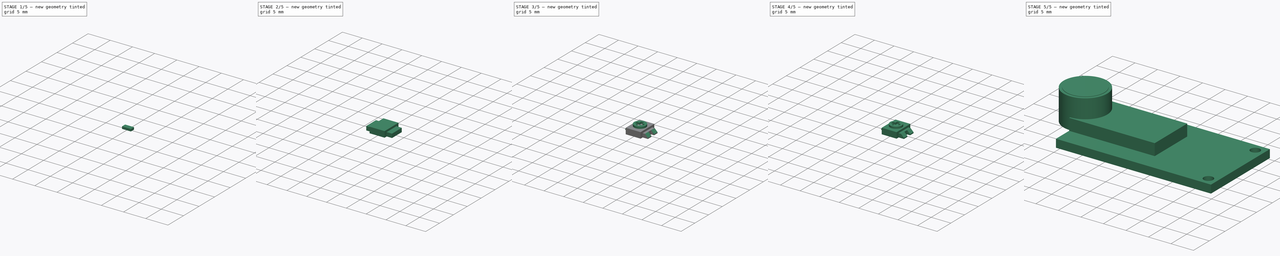
[diagram: build sequence overview — one tinted view per stage of 5, left to right]
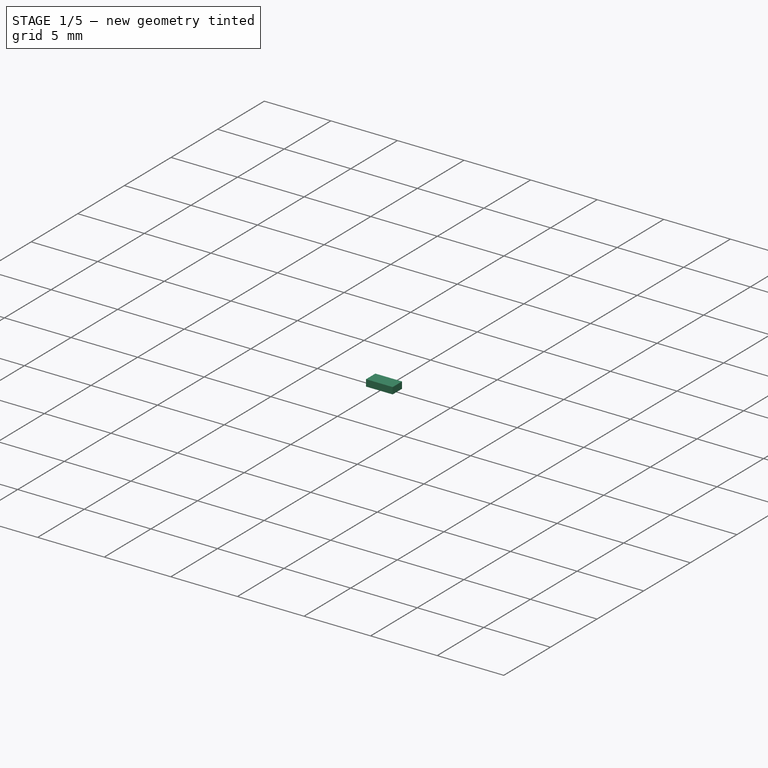
[diagram: stage 1 of 5 — iso view after this stage's code; geometry added in this stage tinted green]
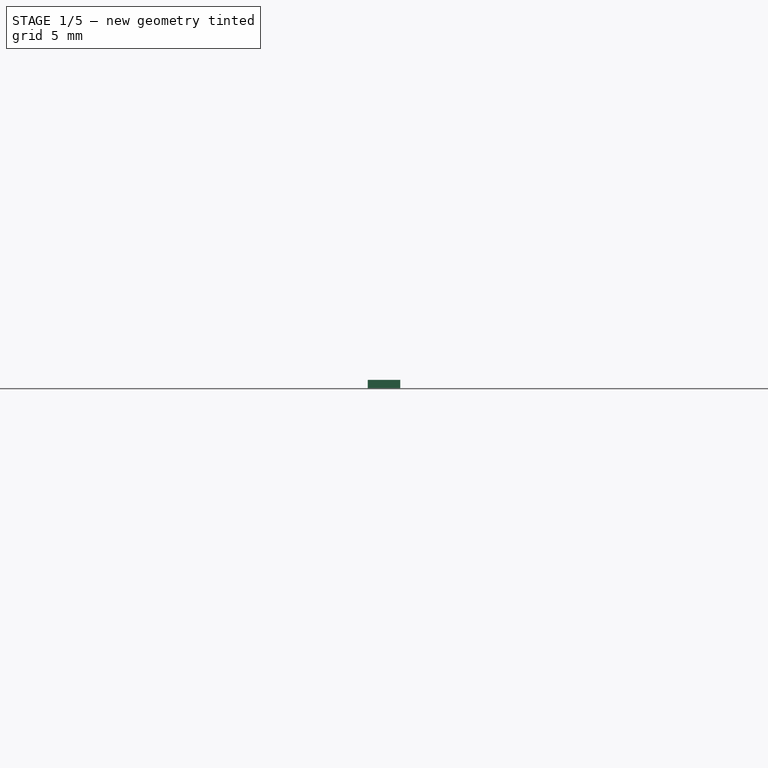
[diagram: stage 1 of 5 — front view after this stage's code; geometry added in this stage tinted green]
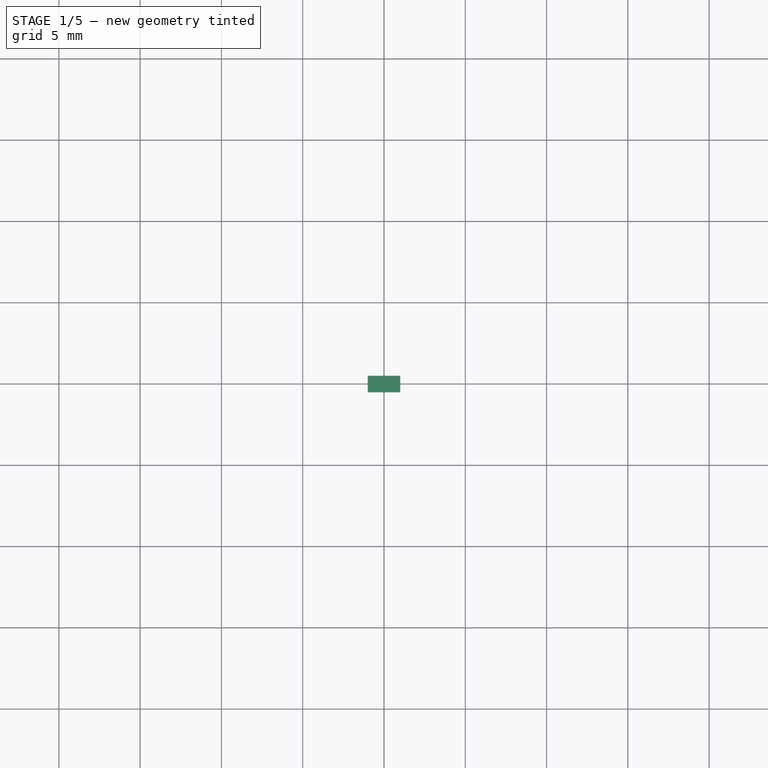
[diagram: stage 1 of 5 — top view after this stage's code; geometry added in this stage tinted green]
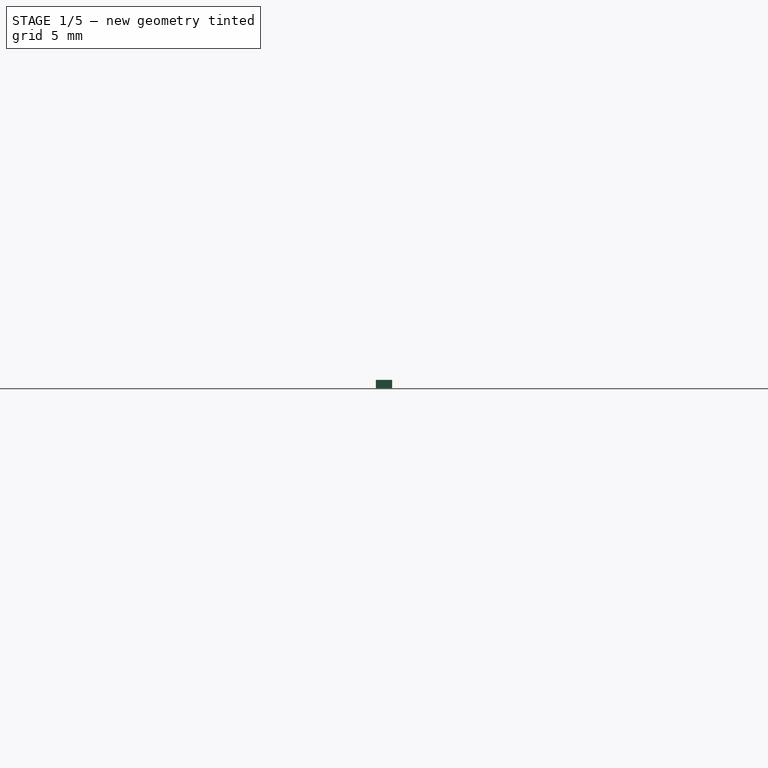
[diagram: stage 1 of 5 — right view after this stage's code; geometry added in this stage tinted green]
FCSTD DOCUMENT  (FreeCAD 0.19R24276 (Git))
Label: WaveS_SoundSensor
License: All rights reserved
LicenseURL: http://en.wikipedia.org/wiki/All_rights_reserved
objects: Sketcher::SketchObject×32, PartDesign::Pad×22, PartDesign::Body×20, PartDesign::Pocket×10, PartDesign::Chamfer×2, App::Part×1
note: 120 computed .brp shape members not serialized (recipe doc carries the construction recipe); baked Part::Feature solids carry a one-line shape summary decoded from their .brp

FEATURE [PartDesign::Body] Body012  label="SmallEComp003"
  Group = -> [Sketch024,Pad014]
  Origin = -> Origin013
  Placement = pos=(14,4,0) rot=(0,0,1;0rad)
  Tip = -> Pad014
FEATURE [Sketcher::SketchObject] Sketch025
  FullyConstrained = true
  MapMode = 5
  Support = -> [XY_Plane014]
  sketch-geometry (4):
    g0: LineSegment StartX=-1 StartY=0.5 StartZ=0 EndX=1 EndY=0.5 EndZ=0
    g1: LineSegment StartX=1 StartY=0.5 StartZ=0 EndX=1 EndY=-0.5 EndZ=0
    g2: LineSegment StartX=1 StartY=-0.5 StartZ=0 EndX=-1 EndY=-0.5 EndZ=0
    g3: LineSegment StartX=-1 StartY=-0.5 StartZ=0 EndX=-1 EndY=0.5 EndZ=0
  constraints (11):
    c: Coincident(g0,g1)
    c: Coincident(g1,g2)
    c: Coincident(g2,g3)
    c: Coincident(g3,g0)
    c: Horizontal(g0)
    c: Horizontal(g2)
    c: Vertical(g1)
    c: Vertical(g3)
    c: Symmetric(g0,g1,g-1)
    c: Distance(g0) = 2
    c: Distance(g1) = 1
FEATURE [PartDesign::Pad] Pad015
  Direction = (1,1,1)
  Length = 0.5
  Length2 = 100
  Profile = -> Sketch025
  Type = 0
FEATURE [PartDesign::Body] Body013  label="SmallEComp004"
  Group = -> [Sketch025,Pad015]
  Origin = -> Origin014
  Placement = pos=(21,1.5,0) rot=(0,0,1;0rad)
  Tip = -> Pad015
FEATURE [Sketcher::SketchObject] Sketch026
  FullyConstrained = true
  MapMode = 5
  Support = -> [XY_Plane015]
  sketch-geometry (4):
    g0: LineSegment StartX=-1 StartY=0.5 StartZ=0 EndX=1 EndY=0.5 EndZ=0
    g1: LineSegment StartX=1 StartY=0.5 StartZ=0 EndX=1 EndY=-0.5 EndZ=0
    g2: LineSegment StartX=1 StartY=-0.5 StartZ=0 EndX=-1 EndY=-0.5 EndZ=0
    g3: LineSegment StartX=-1 StartY=-0.5 StartZ=0 EndX=-1 EndY=0.5 EndZ=0
  constraints (11):
    c: Coincident(g0,g1)
    c: Coincident(g1,g2)
    c: Coincident(g2,g3)
    c: Coincident(g3,g0)
    c: Horizontal(g0)
    c: Horizontal(g2)
    c: Vertical(g1)
    c: Vertical(g3)
    c: Symmetric(g0,g1,g-1)
    c: Distance(g0) = 2
    c: Distance(g1) = 1
FEATURE [PartDesign::Pad] Pad016
  Direction = (1,1,1)
  Length = 0.5
  Length2 = 100
  Profile = -> Sketch026
  Type = 0
FEATURE [PartDesign::Body] Body014  label="SmallEComp005"
  Group = -> [Sketch026,Pad016]
  Origin = -> Origin015
  Placement = pos=(21,4,0) rot=(0,0,1;0rad)
  Tip = -> Pad016
FEATURE [Sketcher::SketchObject] Sketch027
  FullyConstrained = true
  MapMode = 5
  Support = -> [XY_Plane016]
  sketch-geometry (4):
    g0: LineSegment StartX=-1 StartY=0.5 StartZ=0 EndX=1 EndY=0.5 EndZ=0
    g1: LineSegment StartX=1 StartY=0.5 StartZ=0 EndX=1 EndY=-0.5 EndZ=0
    g2: LineSegment StartX=1 StartY=-0.5 StartZ=0 EndX=-1 EndY=-0.5 EndZ=0
    g3: LineSegment StartX=-1 StartY=-0.5 StartZ=0 EndX=-1 EndY=0.5 EndZ=0
  constraints (11):
    c: Coincident(g0,g1)
    c: Coincident(g1,g2)
    c: Coincident(g2,g3)
    c: Coincident(g3,g0)
    c: Horizontal(g0)
    c: Horizontal(g2)
    c: Vertical(g1)
    c: Vertical(g3)
    c: Symmetric(g0,g1,g-1)
    c: Distance(g0) = 2
    c: Distance(g1) = 1
FEATURE [PartDesign::Pad] Pad017
  Direction = (1,1,1)
  Length = 0.5
  Length2 = 100
  Profile = -> Sketch027
  Type = 0
FEATURE [PartDesign::Body] Body015  label="SmallEComp006"
  Group = -> [Sketch027,Pad017]
  Origin = -> Origin016
  Placement = pos=(21,-1.5,0) rot=(0,0,1;0rad)
  Tip = -> Pad017
FEATURE [Sketcher::SketchObject] Sketch028
  FullyConstrained = true
  MapMode = 5
  Support = -> [XY_Plane017]
  sketch-geometry (4):
    g0: LineSegment StartX=-1 StartY=0.5 StartZ=0 EndX=1 EndY=0.5 EndZ=0
    g1: LineSegment StartX=1 StartY=0.5 StartZ=0 EndX=1 EndY=-0.5 EndZ=0
    g2: LineSegment StartX=1 StartY=-0.5 StartZ=0 EndX=-1 EndY=-0.5 EndZ=0
    g3: LineSegment StartX=-1 StartY=-0.5 StartZ=0 EndX=-1 EndY=0.5 EndZ=0
  constraints (11):
    c: Coincident(g0,g1)
    c: Coincident(g1,g2)
    c: Coincident(g2,g3)
    c: Coincident(g3,g0)
    c: Horizontal(g0)
    c: Horizontal(g2)
    c: Vertical(g1)
    c: Vertical(g3)
    c: Symmetric(g0,g1,g-1)
    c: Distance(g0) = 2
    c: Distance(g1) = 1
FEATURE [PartDesign::Pad] Pad018
  Direction = (1,1,1)
  Length = 0.5
  Length2 = 100
  Profile = -> Sketch028
  Type = 0
FEATURE [PartDesign::Body] Body016  label="SmallEComp007"
  Group = -> [Sketch028,Pad018]
  Origin = -> Origin017
  Placement = pos=(21,-4,0) rot=(0,0,1;0rad)
  Tip = -> Pad018
FEATURE [Sketcher::SketchObject] Sketch029
  FullyConstrained = true
  MapMode = 5
  Support = -> [XY_Plane018]
  sketch-geometry (4):
    g0: LineSegment StartX=-1 StartY=0.5 StartZ=0 EndX=1 EndY=0.5 EndZ=0
    g1: LineSegment StartX=1 StartY=0.5 StartZ=0 EndX=1 EndY=-0.5 EndZ=0
    g2: LineSegment StartX=1 StartY=-0.5 StartZ=0 EndX=-1 EndY=-0.5 EndZ=0
    g3: LineSegment StartX=-1 StartY=-0.5 StartZ=0 EndX=-1 EndY=0.5 EndZ=0
  constraints (11):
    c: Coincident(g0,g1)
    c: Coincident(g1,g2)
    c: Coincident(g2,g3)
    c: Coincident(g3,g0)
    c: Horizontal(g0)
    c: Horizontal(g2)
    c: Vertical(g1)
    c: Vertical(g3)
    c: Symmetric(g0,g1,g-1)
    c: Distance(g0) = 2
    c: Distance(g1) = 1
FEATURE [PartDesign::Pad] Pad019
  Direction = (1,1,1)
  Length = 0.5
  Length2 = 100
  Profile = -> Sketch029
  Type = 0
FEATURE [PartDesign::Body] Body017  label="SmallEComp008"
  Group = -> [Sketch029,Pad019]
  Origin = -> Origin018
  Placement = pos=(25,2.5,0) rot=(0,0,1;0rad)
  Tip = -> Pad019
FEATURE [Sketcher::SketchObject] Sketch030
  FullyConstrained = true
  MapMode = 5
  Support = -> [XY_Plane019]
  sketch-geometry (4):
    g0: LineSegment StartX=-1 StartY=0.5 StartZ=0 EndX=1 EndY=0.5 EndZ=0
    g1: LineSegment StartX=1 StartY=0.5 StartZ=0 EndX=1 EndY=-0.5 EndZ=0
    g2: LineSegment StartX=1 StartY=-0.5 StartZ=0 EndX=-1 EndY=-0.5 EndZ=0
    g3: LineSegment StartX=-1 StartY=-0.5 StartZ=0 EndX=-1 EndY=0.5 EndZ=0
  constraints (11):
    c: Coincident(g0,g1)
    c: Coincident(g1,g2)
    c: Coincident(g2,g3)
    c: Coincident(g3,g0)
    c: Horizontal(g0)
    c: Horizontal(g2)
    c: Vertical(g1)
    c: Vertical(g3)
    c: Symmetric(g0,g1,g-1)
    c: Distance(g0) = 2
    c: Distance(g1) = 1
FEATURE [PartDesign::Pad] Pad020
  Direction = (1,1,1)
  Length = 0.5
  Length2 = 100
  Profile = -> Sketch030
  Type = 0
FEATURE [PartDesign::Body] Body018  label="SmallEComp009"
  Group = -> [Sketch030,Pad020]
  Origin = -> Origin019
  Placement = pos=(25,0,0) rot=(0,0,1;0rad)
  Tip = -> Pad020
FEATURE [Sketcher::SketchObject] Sketch031
  FullyConstrained = true
  MapMode = 5
  Support = -> [XY_Plane020]
  sketch-geometry (4):
    g0: LineSegment StartX=-1 StartY=0.5 StartZ=0 EndX=1 EndY=0.5 EndZ=0
    g1: LineSegment StartX=1 StartY=0.5 StartZ=0 EndX=1 EndY=-0.5 EndZ=0
    g2: LineSegment StartX=1 StartY=-0.5 StartZ=0 EndX=-1 EndY=-0.5 EndZ=0
    g3: LineSegment StartX=-1 StartY=-0.5 StartZ=0 EndX=-1 EndY=0.5 EndZ=0
  constraints (11):
    c: Coincident(g0,g1)
    c: Coincident(g1,g2)
    c: Coincident(g2,g3)
    c: Coincident(g3,g0)
    c: Horizontal(g0)
    c: Horizontal(g2)
    c: Vertical(g1)
    c: Vertical(g3)
    c: Symmetric(g0,g1,g-1)
    c: Distance(g0) = 2
    c: Distance(g1) = 1
FEATURE [PartDesign::Pad] Pad021
  Direction = (1,1,1)
  Length = 0.5
  Length2 = 100
  Profile = -> Sketch031
  Type = 0
FEATURE [PartDesign::Body] Body019  label="SmallEComp010"
  Group = -> [Sketch031,Pad021]
  Origin = -> Origin020
  Placement = pos=(25,-2.5,0) rot=(0,0,1;0rad)
  Tip = -> Pad021
FEATURE [App::Part] Part  label="WaveShare_SoundSens"
  Group = -> [Body,Body001,Body002,Body003,Body004,Body005,Body006,Body007,Body008,Body009,Body010,Body011,Body012,Body013,Body014,Body015,Body016,Body017,Body018,Body019]
  Origin = -> Origin
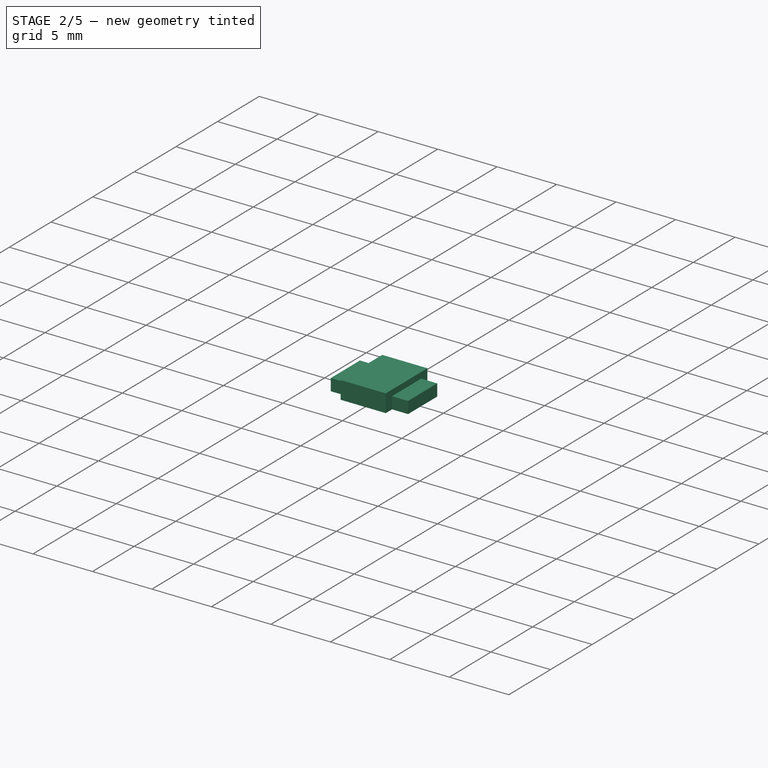
[diagram: stage 2 of 5 — iso view after this stage's code; geometry added in this stage tinted green]
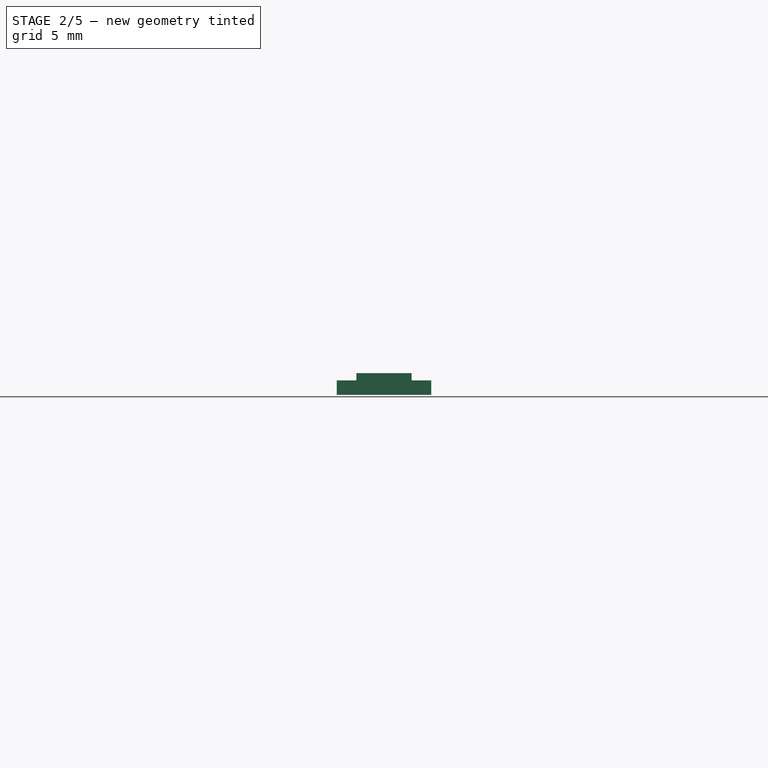
[diagram: stage 2 of 5 — front view after this stage's code; geometry added in this stage tinted green]
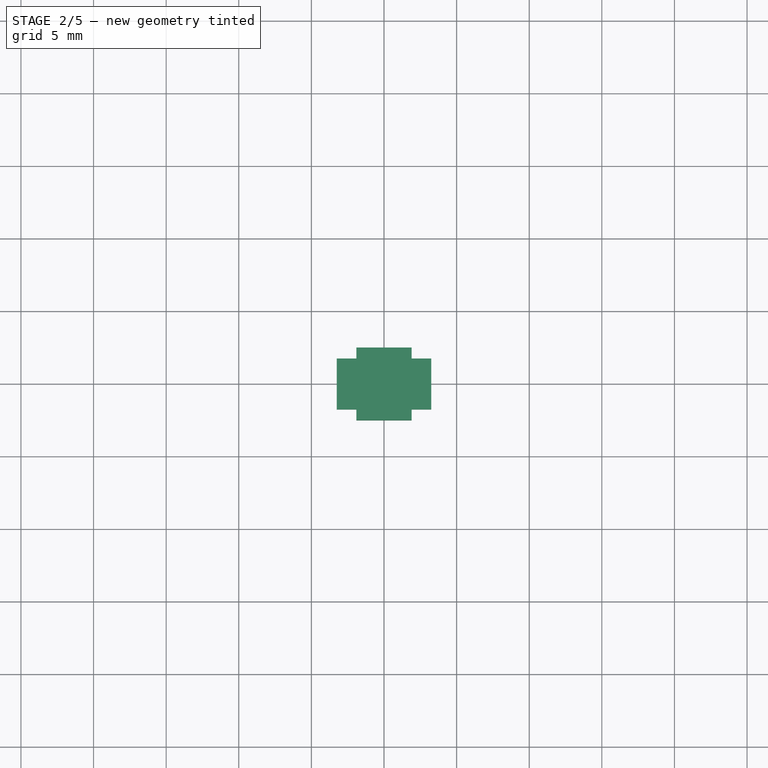
[diagram: stage 2 of 5 — top view after this stage's code; geometry added in this stage tinted green]
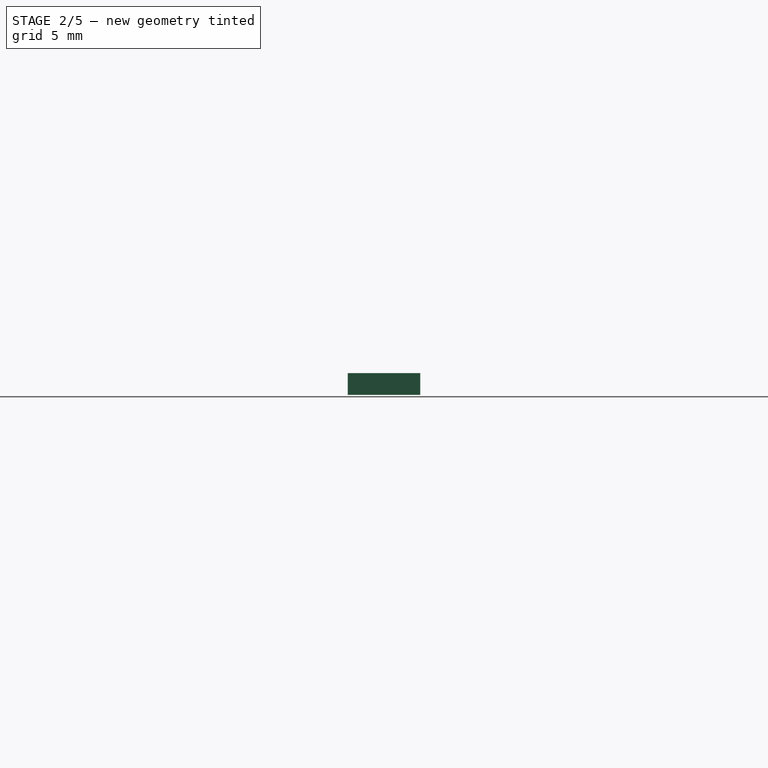
[diagram: stage 2 of 5 — right view after this stage's code; geometry added in this stage tinted green]
FEATURE [PartDesign::Body] Body005  label="TrimPot1"
  Group = -> [Sketch007,Pad005,Sketch008,Pad006,Sketch009,Pocket002,Sketch010,Pocket003,Sketch011,Pocket004,Sketch012,Pocket005,Chamfer]
  Origin = -> Origin006
  Placement = pos=(4,-7,0) rot=(0,0,1;0rad)
  Tip = -> Chamfer
FEATURE [Sketcher::SketchObject] Sketch013
  FullyConstrained = true
  MapMode = 5
  Support = -> [XY_Plane007]
  sketch-geometry (4):
    g0: LineSegment StartX=-3.25 StartY=1.75 StartZ=0 EndX=3.25 EndY=1.75 EndZ=0
    g1: LineSegment StartX=3.25 StartY=1.75 StartZ=0 EndX=3.25 EndY=-1.75 EndZ=0
    g2: LineSegment StartX=3.25 StartY=-1.75 StartZ=0 EndX=-3.25 EndY=-1.75 EndZ=0
    g3: LineSegment StartX=-3.25 StartY=-1.75 StartZ=0 EndX=-3.25 EndY=1.75 EndZ=0
  constraints (11):
    c: Coincident(g0,g1)
    c: Coincident(g1,g2)
    c: Coincident(g2,g3)
    c: Coincident(g3,g0)
    c: Horizontal(g0)
    c: Horizontal(g2)
    c: Vertical(g1)
    c: Vertical(g3)
    c: Symmetric(g0,g1,g-1)
    c: Distance(g0) = 6.5
    c: Distance(g1) = 3.5
FEATURE [PartDesign::Pad] Pad007
  Direction = (1,1,1)
  Length = 1
  Length2 = 100
  Profile = -> Sketch013
  Type = 0
FEATURE [PartDesign::Body] Body006  label="TrimPot2"
  Group = -> [Sketch013,Pad007,Sketch014,Pad008,Sketch016,Pocket009,Sketch015,Pocket007,Sketch017,Pocket008,Sketch018,Pocket006,Chamfer001]
  Origin = -> Origin007
  Placement = pos=(23,-7,0) rot=(0,0,1;0rad)
  Tip = -> Chamfer001
FEATURE [Sketcher::SketchObject] Sketch019
  FullyConstrained = true
  MapMode = 5
  Support = -> [XY_Plane008]
  sketch-geometry (4):
    g0: LineSegment StartX=-1.9 StartY=2.5 StartZ=0 EndX=1.9 EndY=2.5 EndZ=0
    g1: LineSegment StartX=1.9 StartY=2.5 StartZ=0 EndX=1.9 EndY=-2.5 EndZ=0
    g2: LineSegment StartX=1.9 StartY=-2.5 StartZ=0 EndX=-1.9 EndY=-2.5 EndZ=0
    g3: LineSegment StartX=-1.9 StartY=-2.5 StartZ=0 EndX=-1.9 EndY=2.5 EndZ=0
  constraints (11):
    c: Coincident(g0,g1)
    c: Coincident(g1,g2)
    c: Coincident(g2,g3)
    c: Coincident(g3,g0)
    c: Horizontal(g0)
    c: Horizontal(g2)
    c: Vertical(g1)
    c: Vertical(g3)
    c: Symmetric(g0,g1,g-1)
    c: Distance(g1) = 5
    c: Distance(g0) = 3.8
FEATURE [PartDesign::Pad] Pad009
  Direction = (1,1,1)
  Length = 1.5
  Length2 = 100
  Profile = -> Sketch019
  Type = 0
FEATURE [PartDesign::Body] Body007  label="Chip"
  Group = -> [Sketch019,Pad009]
  Origin = -> Origin008
  Placement = pos=(14,-6,0) rot=(0,0,1;0rad)
  Tip = -> Pad009
FEATURE [Sketcher::SketchObject] Sketch020
  FullyConstrained = true
  MapMode = 5
  Support = -> [XY_Plane009]
  sketch-geometry (4):
    g0: LineSegment StartX=-1.9 StartY=2.5 StartZ=0 EndX=1.9 EndY=2.5 EndZ=0
    g1: LineSegment StartX=1.9 StartY=2.5 StartZ=0 EndX=1.9 EndY=-2.5 EndZ=0
    g2: LineSegment StartX=1.9 StartY=-2.5 StartZ=0 EndX=-1.9 EndY=-2.5 EndZ=0
    g3: LineSegment StartX=-1.9 StartY=-2.5 StartZ=0 EndX=-1.9 EndY=2.5 EndZ=0
  constraints (11):
    c: Coincident(g0,g1)
    c: Coincident(g1,g2)
    c: Coincident(g2,g3)
    c: Coincident(g3,g0)
    c: Horizontal(g0)
    c: Horizontal(g2)
    c: Vertical(g1)
    c: Vertical(g3)
    c: Symmetric(g0,g1,g-1)
    c: Distance(g1) = 5
    c: Distance(g0) = 3.8
FEATURE [PartDesign::Pad] Pad010
  Direction = (1,1,1)
  Length = 1.5
  Length2 = 100
  Profile = -> Sketch020
  Type = 0
FEATURE [PartDesign::Body] Body008  label="Chip001"
  Group = -> [Sketch020,Pad010]
  Origin = -> Origin009
  Placement = pos=(14,0,0) rot=(0,0,1;0rad)
  Tip = -> Pad010
FEATURE [Sketcher::SketchObject] Sketch021
  FullyConstrained = true
  MapMode = 5
  Support = -> [XY_Plane010]
  sketch-geometry (4):
    g0: LineSegment StartX=-1.75 StartY=0.6 StartZ=0 EndX=1.75 EndY=0.6 EndZ=0
    g1: LineSegment StartX=1.75 StartY=0.6 StartZ=0 EndX=1.75 EndY=-0.6 EndZ=0
    g2: LineSegment StartX=1.75 StartY=-0.6 StartZ=0 EndX=-1.75 EndY=-0.6 EndZ=0
    g3: LineSegment StartX=-1.75 StartY=-0.6 StartZ=0 EndX=-1.75 EndY=0.6 EndZ=0
  constraints (11):
    c: Coincident(g0,g1)
    c: Coincident(g1,g2)
    c: Coincident(g2,g3)
    c: Coincident(g3,g0)
    c: Horizontal(g0)
    c: Horizontal(g2)
    c: Vertical(g1)
    c: Vertical(g3)
    c: Symmetric(g0,g1,g-1)
    c: Distance(g0) = 3.5
    c: Distance(g1) = 1.2
FEATURE [PartDesign::Pad] Pad011
  Direction = (1,1,1)
  Length = 0.75
  Length2 = 100
  Profile = -> Sketch021
  Type = 0
FEATURE [PartDesign::Body] Body009  label="SmallEComp"
  Group = -> [Sketch021,Pad011]
  Origin = -> Origin010
  Placement = pos=(29,8,0) rot=(0,0,1;0rad)
  Tip = -> Pad011
FEATURE [Sketcher::SketchObject] Sketch022
  FullyConstrained = true
  MapMode = 5
  Support = -> [XY_Plane011]
  sketch-geometry (4):
    g0: LineSegment StartX=-1.75 StartY=0.6 StartZ=0 EndX=1.75 EndY=0.6 EndZ=0
    g1: LineSegment StartX=1.75 StartY=0.6 StartZ=0 EndX=1.75 EndY=-0.6 EndZ=0
    g2: LineSegment StartX=1.75 StartY=-0.6 StartZ=0 EndX=-1.75 EndY=-0.6 EndZ=0
    g3: LineSegment StartX=-1.75 StartY=-0.6 StartZ=0 EndX=-1.75 EndY=0.6 EndZ=0
  constraints (11):
    c: Coincident(g0,g1)
    c: Coincident(g1,g2)
    c: Coincident(g2,g3)
    c: Coincident(g3,g0)
    c: Horizontal(g0)
    c: Horizontal(g2)
    c: Vertical(g1)
    c: Vertical(g3)
    c: Symmetric(g0,g1,g-1)
    c: Distance(g0) = 3.5
    c: Distance(g1) = 1.2
FEATURE [PartDesign::Pad] Pad012
  Direction = (1,1,1)
  Length = 0.75
  Length2 = 100
  Profile = -> Sketch022
  Type = 0
FEATURE [PartDesign::Body] Body010  label="SmallEComp001"
  Group = -> [Sketch022,Pad012]
  Origin = -> Origin011
  Placement = pos=(29,-8,0) rot=(0,0,1;0rad)
  Tip = -> Pad012
FEATURE [Sketcher::SketchObject] Sketch023
  FullyConstrained = true
  MapMode = 5
  Support = -> [XY_Plane012]
  sketch-geometry (4):
    g0: LineSegment StartX=-2.5 StartY=0.8 StartZ=0 EndX=2.5 EndY=0.8 EndZ=0
    g1: LineSegment StartX=2.5 StartY=0.8 StartZ=0 EndX=2.5 EndY=-0.8 EndZ=0
    g2: LineSegment StartX=2.5 StartY=-0.8 StartZ=0 EndX=-2.5 EndY=-0.8 EndZ=0
    g3: LineSegment StartX=-2.5 StartY=-0.8 StartZ=0 EndX=-2.5 EndY=0.8 EndZ=0
  constraints (11):
    c: Coincident(g0,g1)
    c: Coincident(g1,g2)
    c: Coincident(g2,g3)
    c: Coincident(g3,g0)
    c: Horizontal(g0)
    c: Horizontal(g2)
    c: Vertical(g1)
    c: Vertical(g3)
    c: Symmetric(g0,g1,g-1)
    c: Distance(g0) = 5
    c: Distance(g1) = 1.6
FEATURE [PartDesign::Pad] Pad013
  Direction = (1,1,1)
  Length = 1
  Length2 = 100
  Profile = -> Sketch023
  Type = 0
FEATURE [PartDesign::Body] Body011  label="SmallEComp002"
  Group = -> [Sketch023,Pad013]
  Origin = -> Origin012
  Placement = pos=(14,7,0) rot=(0,0,1;0rad)
  Tip = -> Pad013
FEATURE [Sketcher::SketchObject] Sketch024
  FullyConstrained = true
  MapMode = 5
  Support = -> [XY_Plane013]
  sketch-geometry (4):
    g0: LineSegment StartX=-2.5 StartY=0.8 StartZ=0 EndX=2.5 EndY=0.8 EndZ=0
    g1: LineSegment StartX=2.5 StartY=0.8 StartZ=0 EndX=2.5 EndY=-0.8 EndZ=0
    g2: LineSegment StartX=2.5 StartY=-0.8 StartZ=0 EndX=-2.5 EndY=-0.8 EndZ=0
    g3: LineSegment StartX=-2.5 StartY=-0.8 StartZ=0 EndX=-2.5 EndY=0.8 EndZ=0
  constraints (11):
    c: Coincident(g0,g1)
    c: Coincident(g1,g2)
    c: Coincident(g2,g3)
    c: Coincident(g3,g0)
    c: Horizontal(g0)
    c: Horizontal(g2)
    c: Vertical(g1)
    c: Vertical(g3)
    c: Symmetric(g0,g1,g-1)
    c: Distance(g0) = 5
    c: Distance(g1) = 1.6
FEATURE [PartDesign::Pad] Pad014
  Direction = (1,1,1)
  Length = 1
  Length2 = 100
  Profile = -> Sketch024
  Type = 0
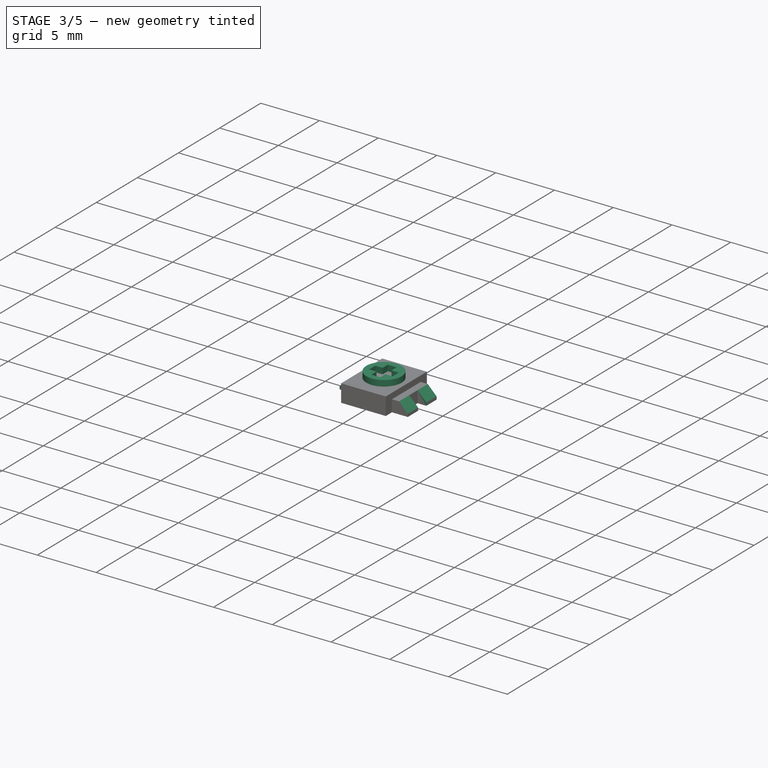
[diagram: stage 3 of 5 — iso view after this stage's code; geometry added in this stage tinted green]
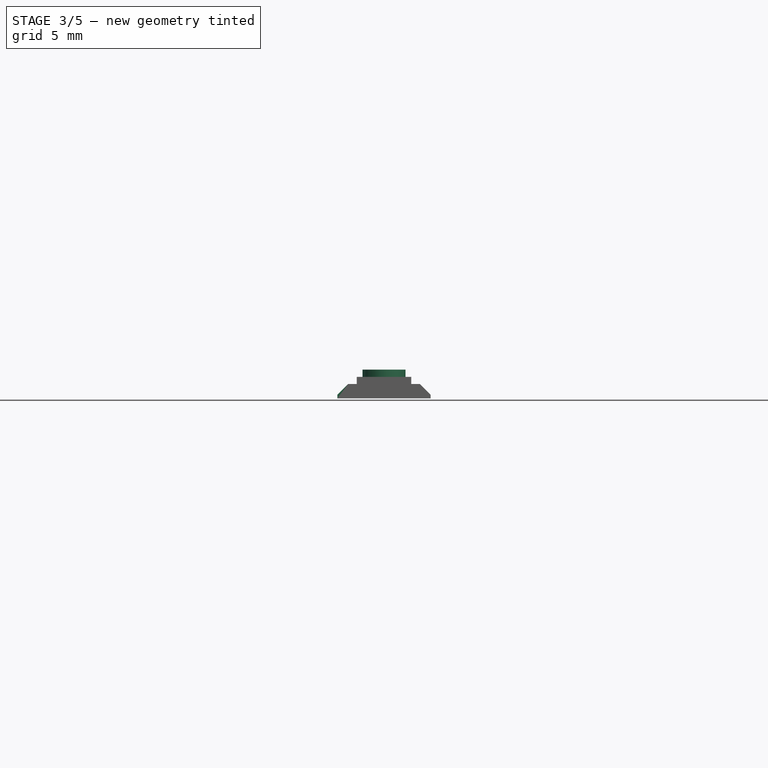
[diagram: stage 3 of 5 — front view after this stage's code; geometry added in this stage tinted green]
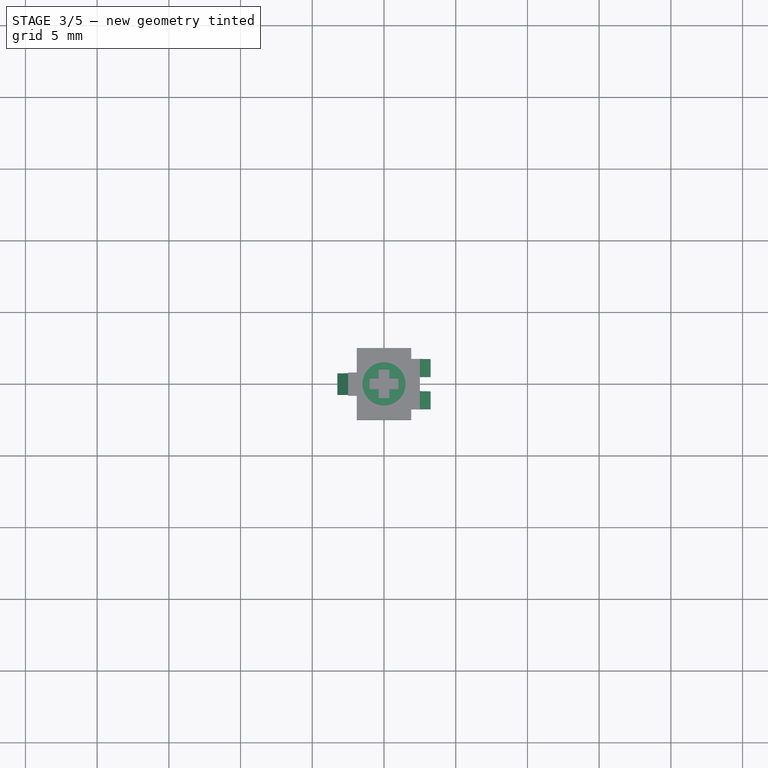
[diagram: stage 3 of 5 — top view after this stage's code; geometry added in this stage tinted green]
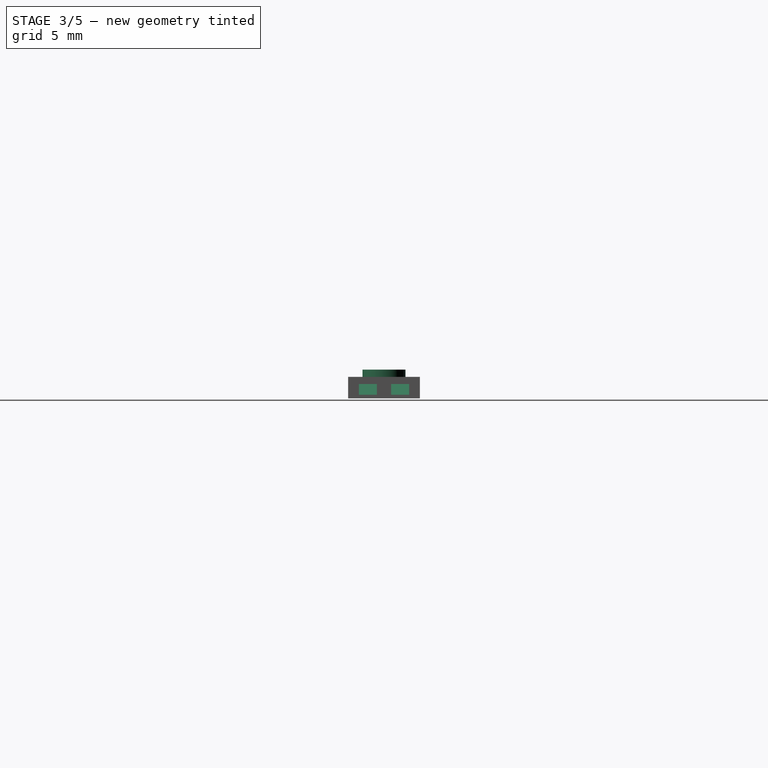
[diagram: stage 3 of 5 — right view after this stage's code; geometry added in this stage tinted green]
FEATURE [Sketcher::SketchObject] Sketch014
  FullyConstrained = true
  MapMode = 5
  Placement = pos=(0,0,1) rot=(0,0,1;0rad)
  Support = -> [Pad007]
  sketch-geometry (1):
    g0: Circle CenterX=0 CenterY=0 CenterZ=0 NormalX=0 NormalY=0 NormalZ=1 AngleXU=0 Radius=1.5
  constraints (2):
    c: Coincident(g0,g-1)
    c: Diameter(g0) = 3
FEATURE [PartDesign::Pad] Pad008
  BaseFeature = -> Pad007
  Direction = (1,1,1)
  Length = 1
  Length2 = 100
  Profile = -> Sketch014
  Type = 0
FEATURE [Sketcher::SketchObject] Sketch016
  FullyConstrained = true
  MapMode = 5
  Placement = pos=(0,0,2) rot=(0,0,1;0rad)
  Support = -> [Pad008]
  sketch-geometry (4):
    g0: LineSegment StartX=-1 StartY=0.375 StartZ=0 EndX=1 EndY=0.375 EndZ=0
    g1: LineSegment StartX=1 StartY=0.375 StartZ=0 EndX=1 EndY=-0.375 EndZ=0
    g2: LineSegment StartX=1 StartY=-0.375 StartZ=0 EndX=-1 EndY=-0.375 EndZ=0
    g3: LineSegment StartX=-1 StartY=-0.375 StartZ=0 EndX=-1 EndY=0.375 EndZ=0
  constraints (11):
    c: Coincident(g0,g1)
    c: Coincident(g1,g2)
    c: Coincident(g2,g3)
    c: Coincident(g3,g0)
    c: Horizontal(g0)
    c: Horizontal(g2)
    c: Vertical(g1)
    c: Vertical(g3)
    c: Symmetric(g0,g1,g-1)
    c: Distance(g1) = 0.75
    c: Distance(g0) = 2
FEATURE [PartDesign::Pocket] Pocket009
  BaseFeature = -> Pad008
  Length = 0.5
  Length2 = 100
  Profile = -> Sketch016
  Type = 0
FEATURE [Sketcher::SketchObject] Sketch015
  FullyConstrained = true
  MapMode = 5
  Placement = pos=(0,0,2) rot=(0,0,1;0rad)
  Support = -> [Pocket009]
  sketch-geometry (4):
    g0: LineSegment StartX=-0.375 StartY=1 StartZ=0 EndX=0.375 EndY=1 EndZ=0
    g1: LineSegment StartX=0.375 StartY=1 StartZ=0 EndX=0.375 EndY=-1 EndZ=0
    g2: LineSegment StartX=0.375 StartY=-1 StartZ=0 EndX=-0.375 EndY=-1 EndZ=0
    g3: LineSegment StartX=-0.375 StartY=-1 StartZ=0 EndX=-0.375 EndY=1 EndZ=0
  constraints (11):
    c: Coincident(g0,g1)
    c: Coincident(g1,g2)
    c: Coincident(g2,g3)
    c: Coincident(g3,g0)
    c: Horizontal(g0)
    c: Horizontal(g2)
    c: Vertical(g1)
    c: Vertical(g3)
    c: Symmetric(g0,g1,g-1)
    c: Distance(g0) = 0.75
    c: Distance(g1) = 2
FEATURE [PartDesign::Pocket] Pocket007
  BaseFeature = -> Pocket009
  Length = 0.5
  Length2 = 100
  Profile = -> Sketch015
  Type = 0
FEATURE [Sketcher::SketchObject] Sketch017
  FullyConstrained = true
  MapMode = 5
  Support = -> [XY_Plane007]
  sketch-geometry (5):
    g0: LineSegment StartX=1.5 StartY=0.5 StartZ=0 EndX=6.5 EndY=0.5 EndZ=0
    g1: LineSegment StartX=6.5 StartY=0.5 StartZ=0 EndX=6.5 EndY=-0.5 EndZ=0
    g2: LineSegment StartX=6.5 StartY=-0.5 StartZ=0 EndX=1.5 EndY=-0.5 EndZ=0
    g3: LineSegment StartX=1.5 StartY=-0.5 StartZ=0 EndX=1.5 EndY=0.5 EndZ=0
    g4: LineSegment StartX=0 StartY=0 StartZ=0 EndX=1.5 EndY=0 EndZ=0
  constraints (14):
    c: Coincident(g0,g1)
    c: Coincident(g1,g2)
    c: Coincident(g2,g3)
    c: Coincident(g3,g0)
    c: Horizontal(g0)
    c: Horizontal(g2)
    c: Vertical(g1)
    c: Vertical(g3)
    c: Coincident(g4,g-1)
    c: PointOnObject(g4,g-1)
    c: Symmetric(g2,g0,g4)
    c: Distance(g4) = 1.5
    c: Distance(g1) = 1
    c: Distance(g0) = 5
FEATURE [PartDesign::Pocket] Pocket008
  BaseFeature = -> Pocket007
  Length = 5
  Length2 = 100
  Profile = -> Sketch017
  Reversed = true
  Type = 0
FEATURE [Sketcher::SketchObject] Sketch018
  FullyConstrained = true
  MapMode = 5
  Support = -> [XY_Plane007]
  sketch-geometry (10):
    g0: LineSegment StartX=-3.5 StartY=0.75 StartZ=0 EndX=-3.5 EndY=-0.75 EndZ=0
    g1: LineSegment StartX=0 StartY=0 StartZ=0 EndX=-3.5 EndY=0 EndZ=0
    g2: LineSegment StartX=-3.5 StartY=-0.75 StartZ=0 EndX=-1.5 EndY=-0.75 EndZ=0
    g3: LineSegment StartX=-1.5 StartY=-0.75 StartZ=0 EndX=-1.5 EndY=-3.75 EndZ=0
    g4: LineSegment StartX=-1.5 StartY=-3.75 StartZ=0 EndX=-4.5 EndY=-3.75 EndZ=0
    g5: LineSegment StartX=-4.5 StartY=-3.75 StartZ=0 EndX=-4.5 EndY=3.75 EndZ=0
    g6: LineSegment StartX=-3.5 StartY=0.75 StartZ=0 EndX=-1.5 EndY=0.75 EndZ=0
    g7: LineSegment StartX=-1.5 StartY=0.75 StartZ=0 EndX=-1.5 EndY=3.75 EndZ=0
    g8: LineSegment StartX=-1.5 StartY=3.75 StartZ=0 EndX=-4.5 EndY=3.75 EndZ=0
    g9: LineSegment StartX=-1.5 StartY=0.75 StartZ=0 EndX=-1.5 EndY=-0.75 EndZ=0
  constraints (28):
    c: Vertical(g0)
    c: Coincident(g1,g-1)
    c: PointOnObject(g1,g-1)
    c: Symmetric(g0,g0,g1)
    c: Coincident(g2,g0)
    c: Horizontal(g2)
    c: Coincident(g3,g2)
    c: Vertical(g3)
    c: Coincident(g4,g3)
    c: Horizontal(g4)
    c: Coincident(g5,g4)
    c: Vertical(g5)
    c: Coincident(g6,g0)
    c: Coincident(g7,g6)
    c: Coincident(g8,g7)
    c: Coincident(g8,g5)
    c: Horizontal(g8)
    c: Vertical(g7)
    c: Horizontal(g6)
    c: Coincident(g9,g6)
    c: Coincident(g9,g2)
    c: Vertical(g9)
    c: Distance(g0) = 1.5
    c: Distance(g7) = 3
    c: Distance(g3) = 3
    c: Distance(g4) = 3
    c: Distance(g6) = 2
    c: DistanceX(g2,g-1) = 1.5
FEATURE [PartDesign::Pocket] Pocket006
  BaseFeature = -> Pocket008
  Length = 5
  Length2 = 100
  Profile = -> Sketch018
  Reversed = true
  Type = 0
FEATURE [PartDesign::Chamfer] Chamfer001
  Angle = 45
  Base = -> Pocket006 [Edge28,Edge21,Edge17]
  BaseFeature = -> Pocket006
  ChamferType = 0
  FlipDirection = false
  Size = 0.75
  Size2 = 1
  SupportTransform = false
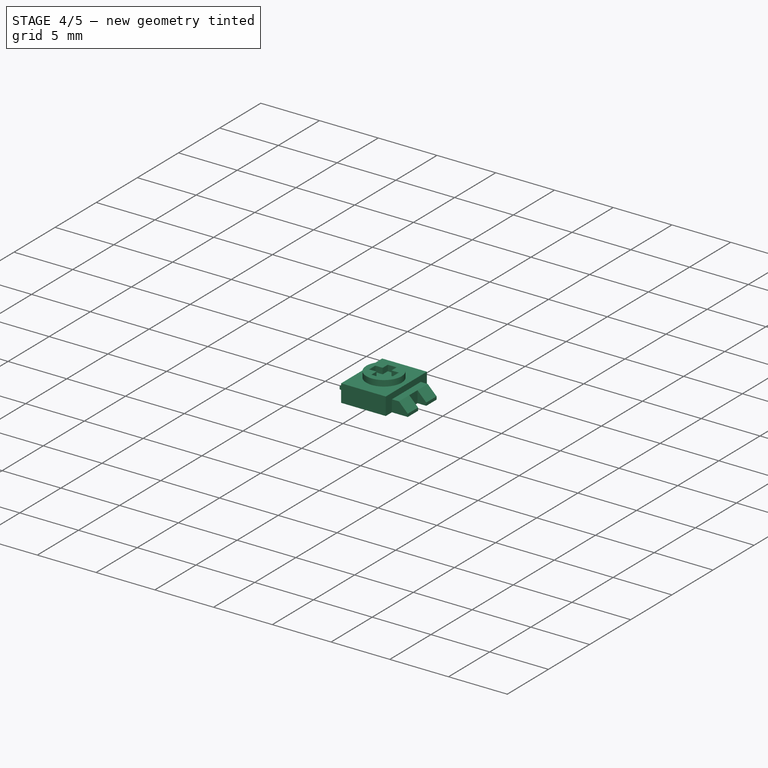
[diagram: stage 4 of 5 — iso view after this stage's code; geometry added in this stage tinted green]
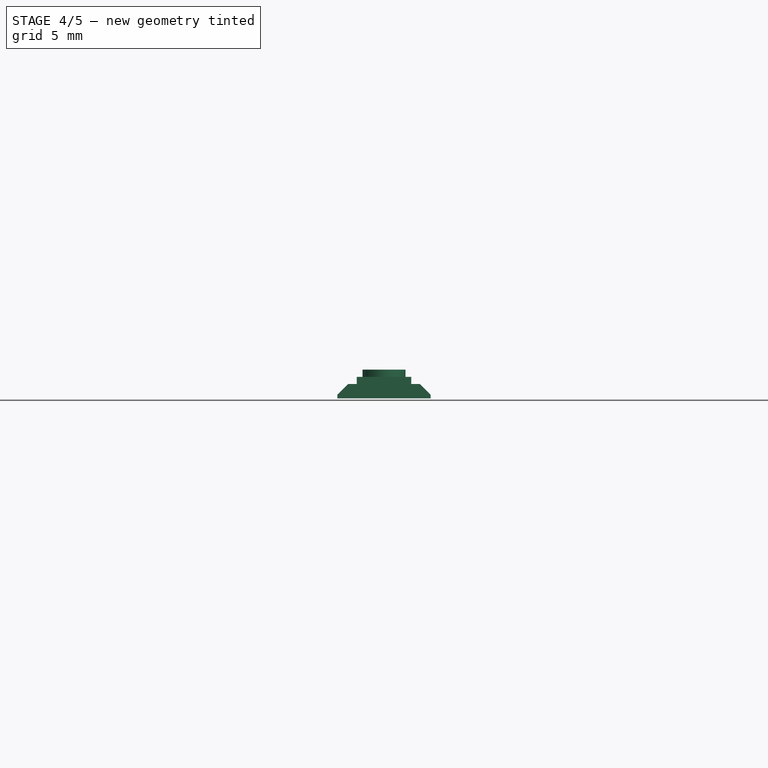
[diagram: stage 4 of 5 — front view after this stage's code; geometry added in this stage tinted green]
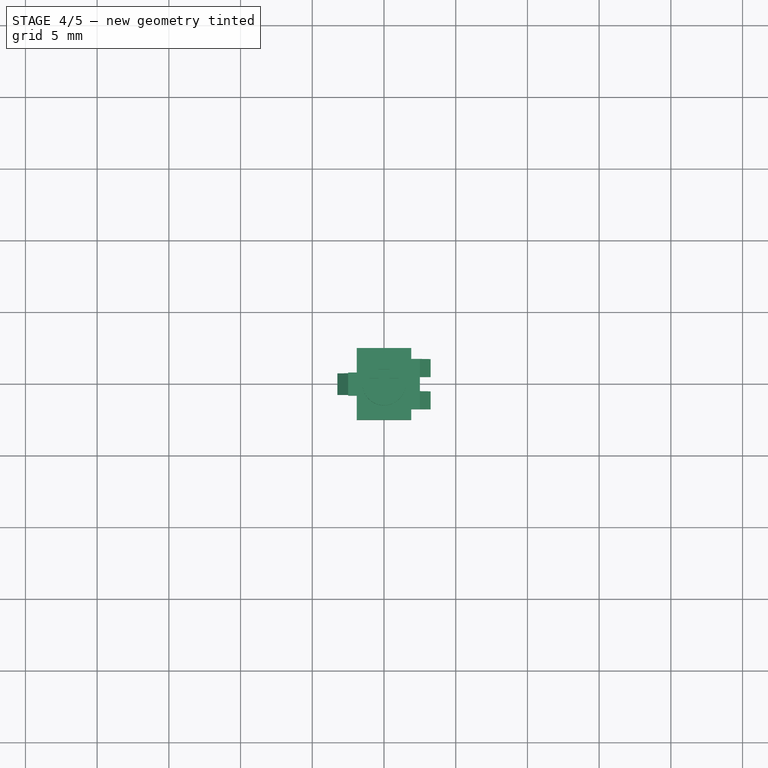
[diagram: stage 4 of 5 — top view after this stage's code; geometry added in this stage tinted green]
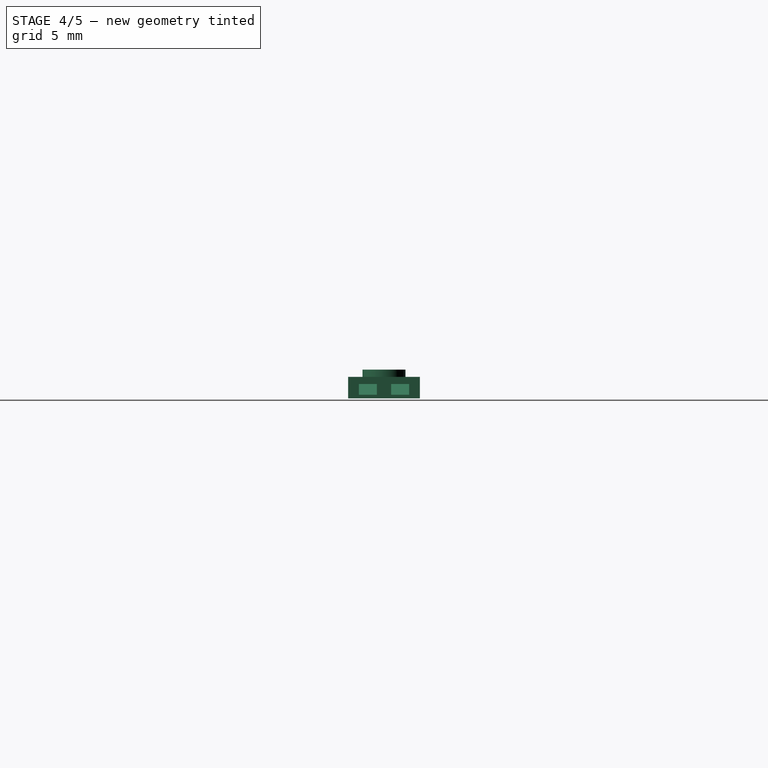
[diagram: stage 4 of 5 — right view after this stage's code; geometry added in this stage tinted green]
FEATURE [PartDesign::Body] Body004  label="Amp"
  Group = -> [Sketch006,Pad004]
  Origin = -> Origin005
  Placement = pos=(21,7,0) rot=(0,0,1;0rad)
  Tip = -> Pad004
FEATURE [Sketcher::SketchObject] Sketch007
  FullyConstrained = true
  MapMode = 5
  Support = -> [XY_Plane006]
  sketch-geometry (4):
    g0: LineSegment StartX=-3.25 StartY=1.75 StartZ=0 EndX=3.25 EndY=1.75 EndZ=0
    g1: LineSegment StartX=3.25 StartY=1.75 StartZ=0 EndX=3.25 EndY=-1.75 EndZ=0
    g2: LineSegment StartX=3.25 StartY=-1.75 StartZ=0 EndX=-3.25 EndY=-1.75 EndZ=0
    g3: LineSegment StartX=-3.25 StartY=-1.75 StartZ=0 EndX=-3.25 EndY=1.75 EndZ=0
  constraints (11):
    c: Coincident(g0,g1)
    c: Coincident(g1,g2)
    c: Coincident(g2,g3)
    c: Coincident(g3,g0)
    c: Horizontal(g0)
    c: Horizontal(g2)
    c: Vertical(g1)
    c: Vertical(g3)
    c: Symmetric(g0,g1,g-1)
    c: Distance(g0) = 6.5
    c: Distance(g1) = 3.5
FEATURE [PartDesign::Pad] Pad005
  Direction = (1,1,1)
  Length = 1
  Length2 = 100
  Profile = -> Sketch007
  Type = 0
FEATURE [Sketcher::SketchObject] Sketch008
  FullyConstrained = true
  MapMode = 5
  Placement = pos=(0,0,1) rot=(0,0,1;0rad)
  Support = -> [Pad005]
  sketch-geometry (1):
    g0: Circle CenterX=0 CenterY=0 CenterZ=0 NormalX=0 NormalY=0 NormalZ=1 AngleXU=0 Radius=1.5
  constraints (2):
    c: Coincident(g0,g-1)
    c: Diameter(g0) = 3
FEATURE [PartDesign::Pad] Pad006
  BaseFeature = -> Pad005
  Direction = (1,1,1)
  Length = 1
  Length2 = 100
  Profile = -> Sketch008
  Type = 0
FEATURE [Sketcher::SketchObject] Sketch009
  FullyConstrained = true
  MapMode = 5
  Placement = pos=(0,0,2) rot=(0,0,1;0rad)
  Support = -> [Pad006]
  sketch-geometry (4):
    g0: LineSegment StartX=-1 StartY=0.375 StartZ=0 EndX=1 EndY=0.375 EndZ=0
    g1: LineSegment StartX=1 StartY=0.375 StartZ=0 EndX=1 EndY=-0.375 EndZ=0
    g2: LineSegment StartX=1 StartY=-0.375 StartZ=0 EndX=-1 EndY=-0.375 EndZ=0
    g3: LineSegment StartX=-1 StartY=-0.375 StartZ=0 EndX=-1 EndY=0.375 EndZ=0
  constraints (11):
    c: Coincident(g0,g1)
    c: Coincident(g1,g2)
    c: Coincident(g2,g3)
    c: Coincident(g3,g0)
    c: Horizontal(g0)
    c: Horizontal(g2)
    c: Vertical(g1)
    c: Vertical(g3)
    c: Symmetric(g0,g1,g-1)
    c: Distance(g1) = 0.75
    c: Distance(g0) = 2
FEATURE [PartDesign::Pocket] Pocket002
  BaseFeature = -> Pad006
  Length = 0.5
  Length2 = 100
  Profile = -> Sketch009
  Type = 0
FEATURE [Sketcher::SketchObject] Sketch010
  FullyConstrained = true
  MapMode = 5
  Placement = pos=(0,0,2) rot=(0,0,1;0rad)
  Support = -> [Pocket002]
  sketch-geometry (4):
    g0: LineSegment StartX=-0.375 StartY=1 StartZ=0 EndX=0.375 EndY=1 EndZ=0
    g1: LineSegment StartX=0.375 StartY=1 StartZ=0 EndX=0.375 EndY=-1 EndZ=0
    g2: LineSegment StartX=0.375 StartY=-1 StartZ=0 EndX=-0.375 EndY=-1 EndZ=0
    g3: LineSegment StartX=-0.375 StartY=-1 StartZ=0 EndX=-0.375 EndY=1 EndZ=0
  constraints (11):
    c: Coincident(g0,g1)
    c: Coincident(g1,g2)
    c: Coincident(g2,g3)
    c: Coincident(g3,g0)
    c: Horizontal(g0)
    c: Horizontal(g2)
    c: Vertical(g1)
    c: Vertical(g3)
    c: Symmetric(g0,g1,g-1)
    c: Distance(g0) = 0.75
    c: Distance(g1) = 2
FEATURE [PartDesign::Pocket] Pocket003
  BaseFeature = -> Pocket002
  Length = 0.5
  Length2 = 100
  Profile = -> Sketch010
  Type = 0
FEATURE [Sketcher::SketchObject] Sketch011
  FullyConstrained = true
  MapMode = 5
  Support = -> [XY_Plane006]
  sketch-geometry (5):
    g0: LineSegment StartX=1.5 StartY=0.5 StartZ=0 EndX=6.5 EndY=0.5 EndZ=0
    g1: LineSegment StartX=6.5 StartY=0.5 StartZ=0 EndX=6.5 EndY=-0.5 EndZ=0
    g2: LineSegment StartX=6.5 StartY=-0.5 StartZ=0 EndX=1.5 EndY=-0.5 EndZ=0
    g3: LineSegment StartX=1.5 StartY=-0.5 StartZ=0 EndX=1.5 EndY=0.5 EndZ=0
    g4: LineSegment StartX=0 StartY=0 StartZ=0 EndX=1.5 EndY=0 EndZ=0
  constraints (14):
    c: Coincident(g0,g1)
    c: Coincident(g1,g2)
    c: Coincident(g2,g3)
    c: Coincident(g3,g0)
    c: Horizontal(g0)
    c: Horizontal(g2)
    c: Vertical(g1)
    c: Vertical(g3)
    c: Coincident(g4,g-1)
    c: PointOnObject(g4,g-1)
    c: Symmetric(g2,g0,g4)
    c: Distance(g4) = 1.5
    c: Distance(g1) = 1
    c: Distance(g0) = 5
FEATURE [PartDesign::Pocket] Pocket004
  BaseFeature = -> Pocket003
  Length = 5
  Length2 = 100
  Profile = -> Sketch011
  Reversed = true
  Type = 0
FEATURE [Sketcher::SketchObject] Sketch012
  FullyConstrained = true
  MapMode = 5
  Support = -> [XY_Plane006]
  sketch-geometry (10):
    g0: LineSegment StartX=-3.5 StartY=0.75 StartZ=0 EndX=-3.5 EndY=-0.75 EndZ=0
    g1: LineSegment StartX=0 StartY=0 StartZ=0 EndX=-3.5 EndY=0 EndZ=0
    g2: LineSegment StartX=-3.5 StartY=-0.75 StartZ=0 EndX=-1.5 EndY=-0.75 EndZ=0
    g3: LineSegment StartX=-1.5 StartY=-0.75 StartZ=0 EndX=-1.5 EndY=-3.75 EndZ=0
    g4: LineSegment StartX=-1.5 StartY=-3.75 StartZ=0 EndX=-4.5 EndY=-3.75 EndZ=0
    g5: LineSegment StartX=-4.5 StartY=-3.75 StartZ=0 EndX=-4.5 EndY=3.75 EndZ=0
    g6: LineSegment StartX=-3.5 StartY=0.75 StartZ=0 EndX=-1.5 EndY=0.75 EndZ=0
    g7: LineSegment StartX=-1.5 StartY=0.75 StartZ=0 EndX=-1.5 EndY=3.75 EndZ=0
    g8: LineSegment StartX=-1.5 StartY=3.75 StartZ=0 EndX=-4.5 EndY=3.75 EndZ=0
    g9: LineSegment StartX=-1.5 StartY=0.75 StartZ=0 EndX=-1.5 EndY=-0.75 EndZ=0
  constraints (28):
    c: Vertical(g0)
    c: Coincident(g1,g-1)
    c: PointOnObject(g1,g-1)
    c: Symmetric(g0,g0,g1)
    c: Coincident(g2,g0)
    c: Horizontal(g2)
    c: Coincident(g3,g2)
    c: Vertical(g3)
    c: Coincident(g4,g3)
    c: Horizontal(g4)
    c: Coincident(g5,g4)
    c: Vertical(g5)
    c: Coincident(g6,g0)
    c: Coincident(g7,g6)
    c: Coincident(g8,g7)
    c: Coincident(g8,g5)
    c: Horizontal(g8)
    c: Vertical(g7)
    c: Horizontal(g6)
    c: Coincident(g9,g6)
    c: Coincident(g9,g2)
    c: Vertical(g9)
    c: Distance(g0) = 1.5
    c: Distance(g7) = 3
    c: Distance(g3) = 3
    c: Distance(g4) = 3
    c: Distance(g6) = 2
    c: DistanceX(g2,g-1) = 1.5
FEATURE [PartDesign::Pocket] Pocket005
  BaseFeature = -> Pocket004
  Length = 5
  Length2 = 100
  Profile = -> Sketch012
  Reversed = true
  Type = 0
FEATURE [PartDesign::Chamfer] Chamfer
  Angle = 45
  Base = -> Pocket005 [Edge28,Edge21,Edge17]
  BaseFeature = -> Pocket005
  ChamferType = 0
  FlipDirection = false
  Size = 0.75
  Size2 = 1
  SupportTransform = false
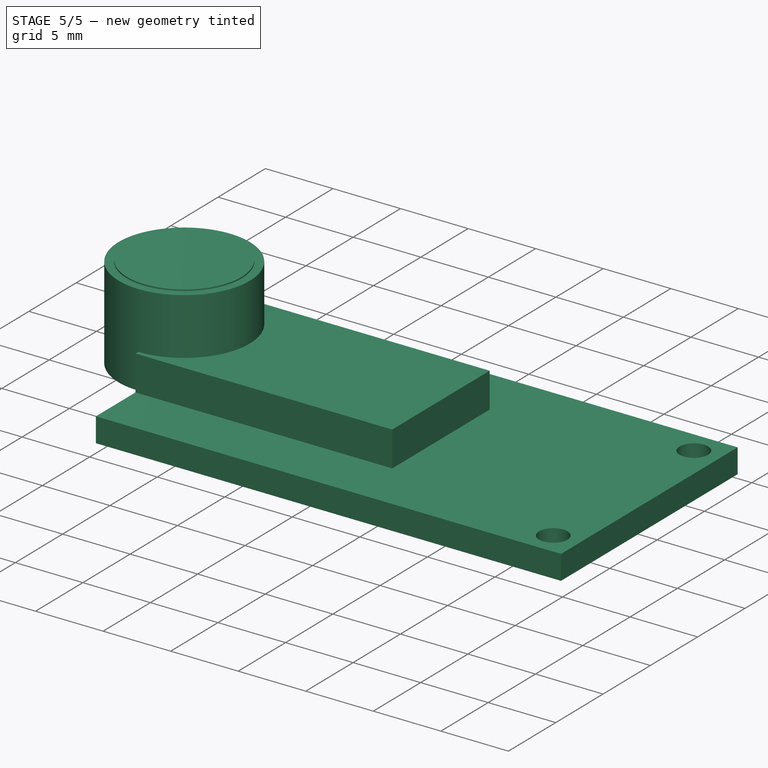
[diagram: stage 5 of 5 — iso view after this stage's code; geometry added in this stage tinted green]
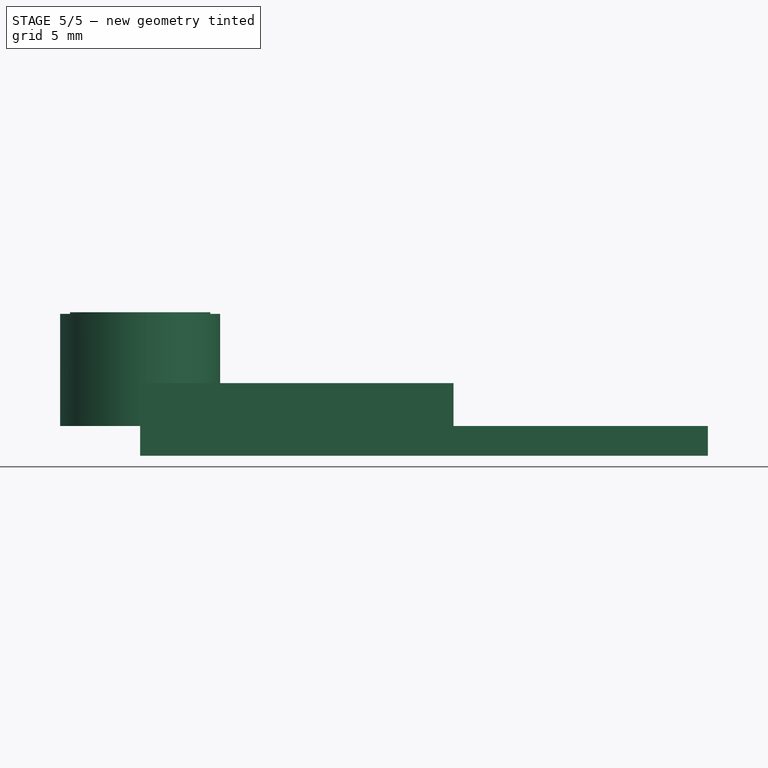
[diagram: stage 5 of 5 — front view after this stage's code; geometry added in this stage tinted green]
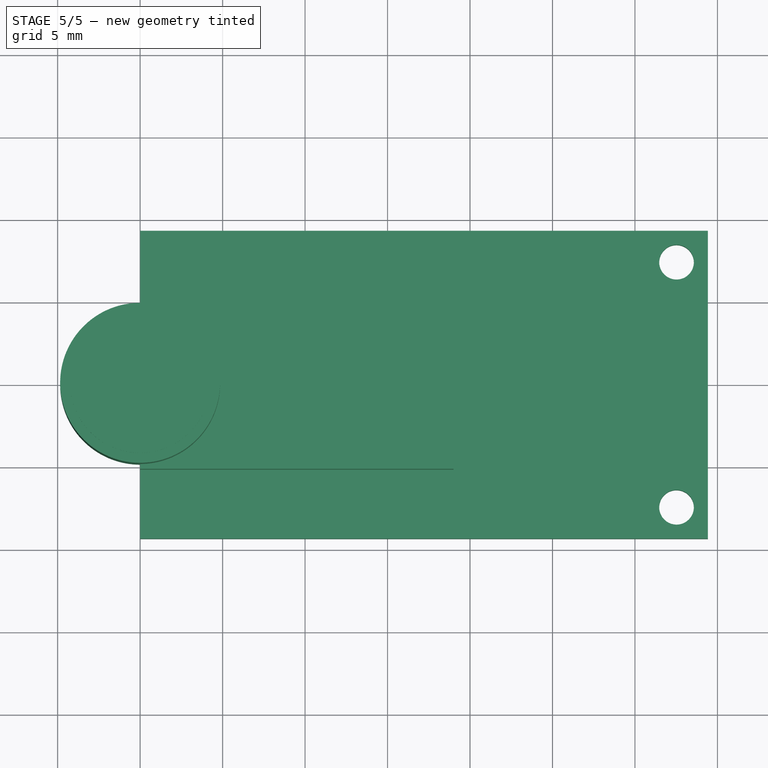
[diagram: stage 5 of 5 — top view after this stage's code; geometry added in this stage tinted green]
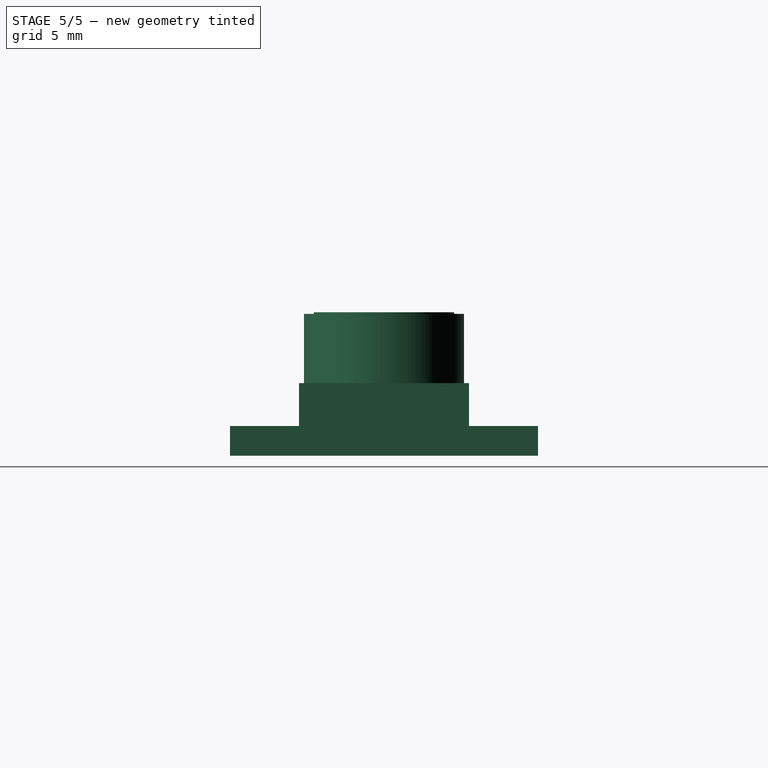
[diagram: stage 5 of 5 — right view after this stage's code; geometry added in this stage tinted green]
FEATURE [Sketcher::SketchObject] Sketch
  FullyConstrained = true
  MapMode = 5
  Support = -> [XY_Plane001]
  sketch-geometry (4):
    g0: LineSegment StartX=0 StartY=-9.335 StartZ=0 EndX=34.42 EndY=-9.335 EndZ=0
    g1: LineSegment StartX=34.42 StartY=-9.335 StartZ=0 EndX=34.42 EndY=9.335 EndZ=0
    g2: LineSegment StartX=34.42 StartY=9.335 StartZ=0 EndX=0 EndY=9.335 EndZ=0
    g3: LineSegment StartX=0 StartY=9.335 StartZ=0 EndX=0 EndY=-9.335 EndZ=0
  constraints (11):
    c: Coincident(g0,g1)
    c: Coincident(g1,g2)
    c: Coincident(g2,g3)
    c: Coincident(g3,g0)
    c: Horizontal(g0)
    c: Horizontal(g2)
    c: Vertical(g1)
    c: Vertical(g3)
    c: Symmetric(g0,g2,g-1)
    c: DistanceX(g2,g1) = 34.42
    c: DistanceY(g0,g2) = 18.67
FEATURE [PartDesign::Pad] Pad
  Direction = (1,1,1)
  Length = 1.8
  Length2 = 100
  Profile = -> Sketch
  Reversed = true
  Type = 0
FEATURE [Sketcher::SketchObject] Sketch001
  FullyConstrained = true
  MapMode = 5
  Support = -> [XY_Plane001]
  sketch-geometry (4):
    g0: LineSegment StartX=0 StartY=0 StartZ=0 EndX=32.52 EndY=0 EndZ=0
    g1: LineSegment StartX=32.52 StartY=-7.43 StartZ=0 EndX=32.52 EndY=7.43 EndZ=0
    g2: Circle CenterX=32.52 CenterY=7.43 CenterZ=0 NormalX=0 NormalY=0 NormalZ=1 AngleXU=0 Radius=1.05
    g3: Circle CenterX=32.52 CenterY=-7.43 CenterZ=0 NormalX=0 NormalY=0 NormalZ=1 AngleXU=0 Radius=1.05
  constraints (10):
    c: Coincident(g0,g-1)
    c: PointOnObject(g0,g-1)
    c: Vertical(g1)
    c: Symmetric(g1,g1,g0)
    c: Coincident(g2,g1)
    c: Coincident(g3,g1)
    c: Equal(g3,g2)
    c: Diameter(g2) = 2.1
    c: Distance(g1) = 14.86
    c: DistanceX(g-1,g2) = 32.52
FEATURE [PartDesign::Pocket] Pocket
  BaseFeature = -> Pad
  Length = 5
  Length2 = 100
  Profile = -> Sketch001
  Type = 0
FEATURE [PartDesign::Body] Body  label="MainPlate"
  Group = -> [Sketch,Pad,Sketch001,Pocket]
  Origin = -> Origin001
  Tip = -> Pocket
FEATURE [Sketcher::SketchObject] Sketch002
  FullyConstrained = true
  MapMode = 5
  Support = -> [XY_Plane002]
  sketch-geometry (1):
    g0: Circle CenterX=0 CenterY=0 CenterZ=0 NormalX=0 NormalY=0 NormalZ=1 AngleXU=0 Radius=4.85
  constraints (2):
    c: Coincident(g0,g-1)
    c: Diameter(g0) = 9.7
FEATURE [PartDesign::Pad] Pad001
  Direction = (1,1,1)
  Length = 6.8
  Length2 = 100
  Profile = -> Sketch002
  Type = 0
FEATURE [Sketcher::SketchObject] Sketch003
  FullyConstrained = true
  MapMode = 5
  Support = -> [XY_Plane002]
  sketch-geometry (1):
    g0: Circle CenterX=0 CenterY=0 CenterZ=0 NormalX=0 NormalY=0 NormalZ=1 AngleXU=0 Radius=4.25
  constraints (2):
    c: Coincident(g0,g-1)
    c: Diameter(g0) = 8.5
FEATURE [PartDesign::Pocket] Pocket001
  BaseFeature = -> Pad001
  Length = 5
  Length2 = 100
  Profile = -> Sketch003
  Reversed = true
  Type = 1
FEATURE [PartDesign::Body] Body001  label="Speaker_Shell"
  Group = -> [Sketch002,Pad001,Sketch003,Pocket001]
  Origin = -> Origin002
  Placement = pos=(5,0,0) rot=(0,0,1;0rad)
  Tip = -> Pocket001
FEATURE [Sketcher::SketchObject] Sketch004
  FullyConstrained = true
  MapMode = 5
  Support = -> [XY_Plane003]
  sketch-geometry (1):
    g0: Circle CenterX=0 CenterY=0 CenterZ=0 NormalX=0 NormalY=0 NormalZ=1 AngleXU=0 Radius=4.25
  constraints (2):
    c: Coincident(g0,g-1)
    c: Diameter(g0) = 8.5
FEATURE [PartDesign::Pad] Pad002
  Direction = (1,1,1)
  Length = 6.9
  Length2 = 100
  Profile = -> Sketch004
  Type = 0
FEATURE [PartDesign::Body] Body002  label="Speaker_Core"
  Group = -> [Sketch004,Pad002]
  Origin = -> Origin003
  Placement = pos=(5,0,0) rot=(0,0,1;0rad)
  Tip = -> Pad002
FEATURE [Sketcher::SketchObject] Sketch005
  FullyConstrained = true
  MapMode = 5
  Placement = pos=(0,0,0) rot=(0.57735,0.57735,0.57735;2.0944rad)
  Support = -> [YZ_Plane004]
  sketch-geometry (4):
    g0: LineSegment StartX=-5.15 StartY=0 StartZ=0 EndX=5.15 EndY=0 EndZ=0
    g1: LineSegment StartX=5.15 StartY=0 StartZ=0 EndX=5.15 EndY=2.6 EndZ=0
    g2: LineSegment StartX=5.15 StartY=2.6 StartZ=0 EndX=-5.15 EndY=2.6 EndZ=0
    g3: LineSegment StartX=-5.15 StartY=2.6 StartZ=0 EndX=-5.15 EndY=0 EndZ=0
  constraints (11):
    c: Coincident(g0,g1)
    c: Coincident(g1,g2)
    c: Coincident(g2,g3)
    c: Coincident(g3,g0)
    c: Horizontal(g0)
    c: Horizontal(g2)
    c: Vertical(g1)
    c: Vertical(g3)
    c: Symmetric(g0,g0,g-1)
    c: Distance(g1) = 2.6
    c: Distance(g2) = 10.3
FEATURE [PartDesign::Pad] Pad003
  Direction = (1,1,1)
  Length = 19
  Length2 = 100
  Placement = pos=(0,0,0) rot=(0.57735,0.57735,0.57735;2.0944rad)
  Profile = -> Sketch005
  Type = 0
FEATURE [PartDesign::Body] Body003  label="Pins"
  Group = -> [Sketch005,Pad003]
  Origin = -> Origin004
  Placement = pos=(31,0,0) rot=(0,0,1;0rad)
  Tip = -> Pad003
FEATURE [Sketcher::SketchObject] Sketch006
  FullyConstrained = true
  MapMode = 5
  Support = -> [XY_Plane005]
  sketch-geometry (4):
    g0: LineSegment StartX=-3.5 StartY=2.15 StartZ=0 EndX=3.5 EndY=2.15 EndZ=0
    g1: LineSegment StartX=3.5 StartY=2.15 StartZ=0 EndX=3.5 EndY=-2.15 EndZ=0
    g2: LineSegment StartX=3.5 StartY=-2.15 StartZ=0 EndX=-3.5 EndY=-2.15 EndZ=0
    g3: LineSegment StartX=-3.5 StartY=-2.15 StartZ=0 EndX=-3.5 EndY=2.15 EndZ=0
  constraints (11):
    c: Coincident(g0,g1)
    c: Coincident(g1,g2)
    c: Coincident(g2,g3)
    c: Coincident(g3,g0)
    c: Horizontal(g0)
    c: Horizontal(g2)
    c: Vertical(g1)
    c: Vertical(g3)
    c: Symmetric(g0,g1,g-1)
    c: Distance(g1) = 4.3
    c: Distance(g0) = 7
FEATURE [PartDesign::Pad] Pad004
  Direction = (1,1,1)
  Length = 3
  Length2 = 100
  Profile = -> Sketch006
  Type = 0
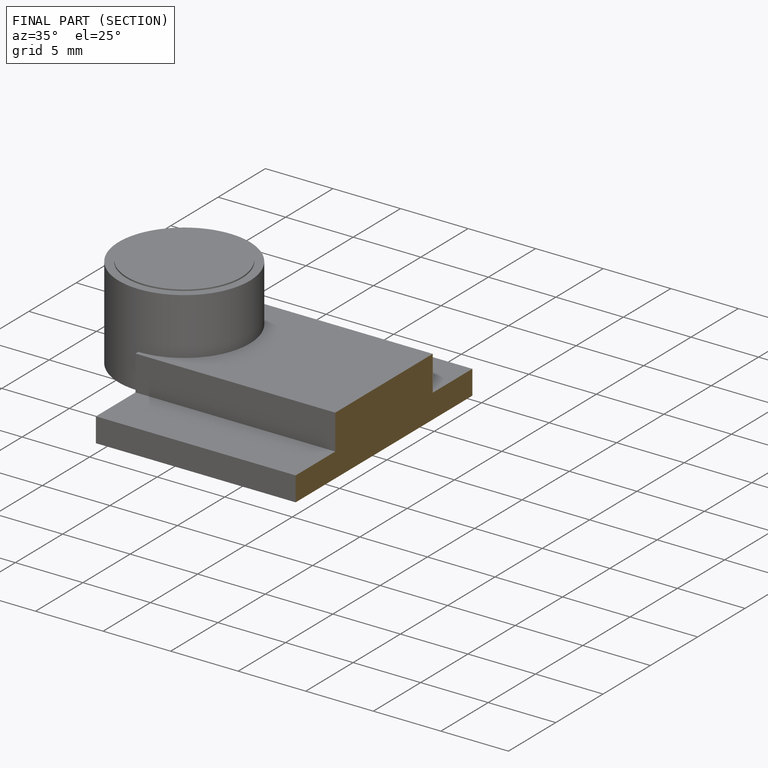
[diagram: finished part — half-section view (interior)]
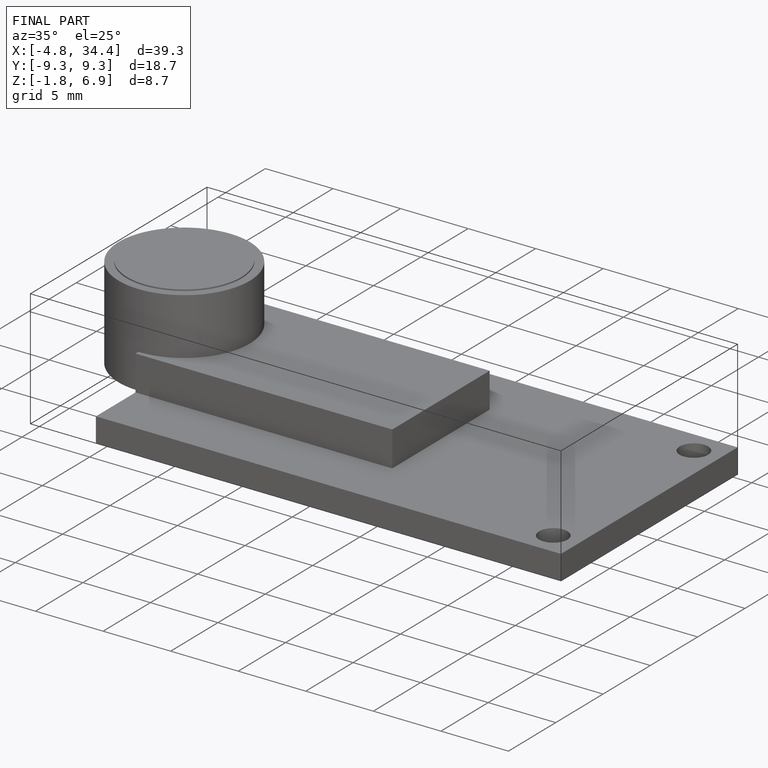
[diagram: finished part — iso view with bounding-box wireframe]
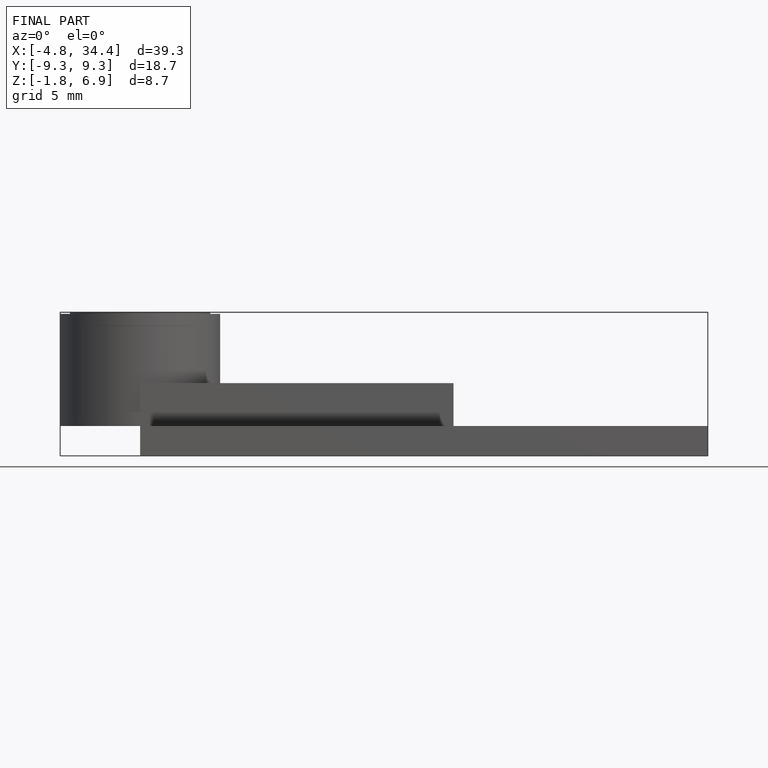
[diagram: finished part — front view with bounding-box wireframe]
